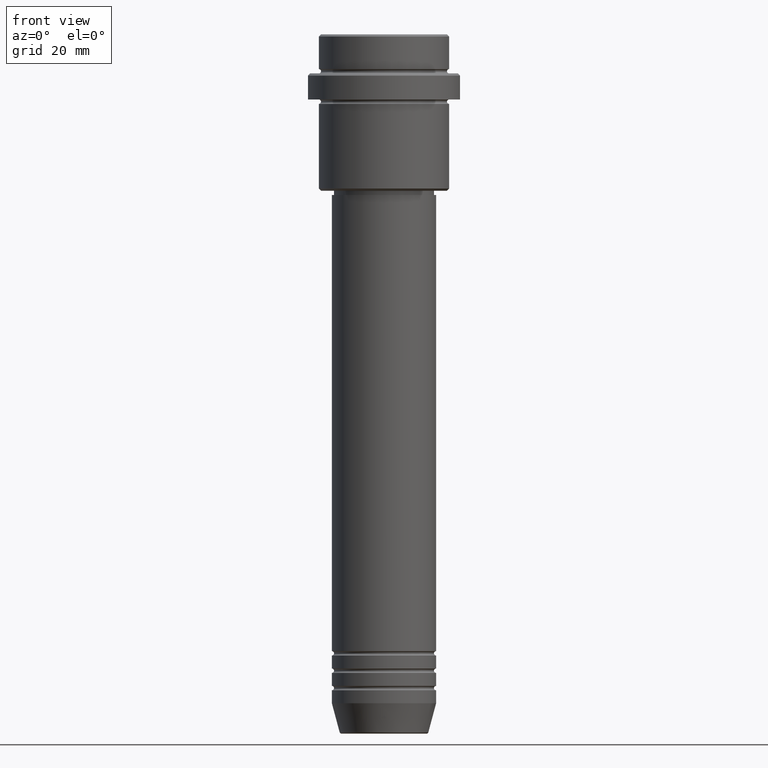
[diagram: clean part render]
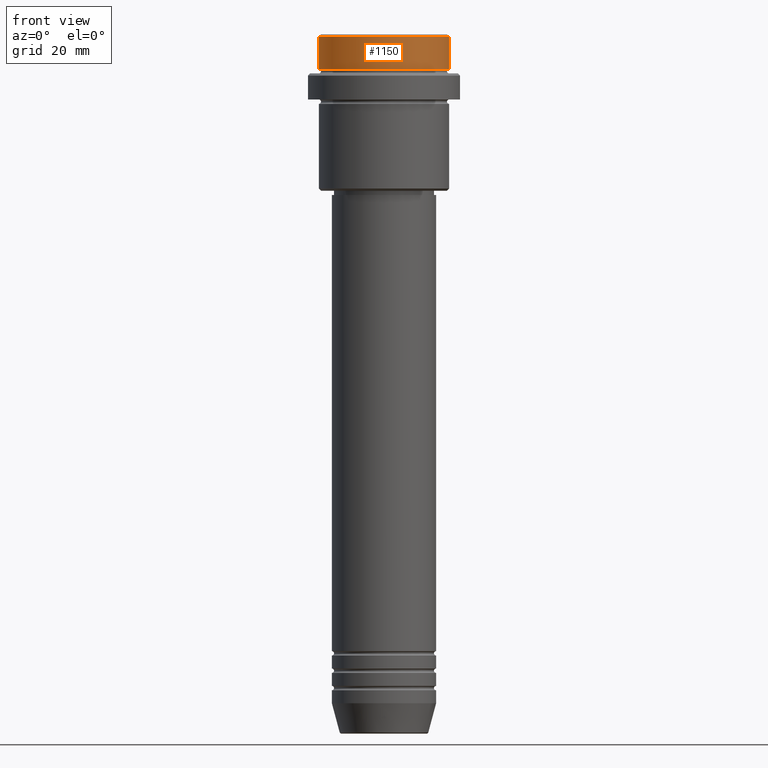
[diagram: same view with one face highlighted and labeled with its STEP entity id]
A machine part, front view. The second image highlights one B-rep face of the part: STEP entity #1150.
In plain terms, the highlighted cylindrical surface (partial cylindrical patch) has radius 15 mm, axis along (-0, -0, 1).
Its self-contained STEP definition (entity closure, byte-faithful):
#24 = DIRECTION ( 'NONE',  ( -0.000000000000000000, -0.000000000000000000, 1.000000000000000000 ) ) ;
#46 = DIRECTION ( 'NONE',  ( 1.000000000000000000, 0.000000000000000000, 0.000000000000000000 ) ) ;
#56 = ORIENTED_EDGE ( 'NONE', *, *, #463, .F. ) ;
#68 = CARTESIAN_POINT ( 'NONE',  ( 15.00000000000000000, 0.000000000000000000, -7.999999999999998224 ) ) ;
#70 = EDGE_CURVE ( 'NONE', #228, #901, #682, .T. ) ;
#92 = CYLINDRICAL_SURFACE ( 'NONE', #614, 15.00000000000000000 ) ;
#127 = EDGE_CURVE ( 'NONE', #1234, #228, #932, .T. ) ;
#158 = ORIENTED_EDGE ( 'NONE', *, *, #70, .T. ) ;
#159 = DIRECTION ( 'NONE',  ( 1.000000000000000000, 0.000000000000000000, 0.000000000000000000 ) ) ;
#193 = FACE_OUTER_BOUND ( 'NONE', #1170, .T. ) ;
#206 = CARTESIAN_POINT ( 'NONE',  ( -15.00000000000000000, 1.836970198721029589E-15, 0.000000000000000000 ) ) ;
#228 = VERTEX_POINT ( 'NONE', #68 ) ;
#232 = VERTEX_POINT ( 'NONE', #851 ) ;
#264 = CARTESIAN_POINT ( 'NONE',  ( 0.000000000000000000, 0.000000000000000000, -7.999999999999998224 ) ) ;
#463 = EDGE_CURVE ( 'NONE', #1234, #232, #1319, .T. ) ;
#469 = CIRCLE ( 'NONE', #770, 15.00000000000000000 ) ;
#486 = CARTESIAN_POINT ( 'NONE',  ( 15.00000000000000000, 0.000000000000000000, -0.5000000000000386358 ) ) ;
#527 = CARTESIAN_POINT ( 'NONE',  ( 0.000000000000000000, 0.000000000000000000, 0.000000000000000000 ) ) ;
#614 = AXIS2_PLACEMENT_3D ( 'NONE', #527, #966, #1394 ) ;
#623 = ORIENTED_EDGE ( 'NONE', *, *, #127, .T. ) ;
#682 = LINE ( 'NONE', #1118, #886 ) ;
#701 = DIRECTION ( 'NONE',  ( -0.000000000000000000, -0.000000000000000000, 1.000000000000000000 ) ) ;
#741 = AXIS2_PLACEMENT_3D ( 'NONE', #264, #701, #159 ) ;
#770 = AXIS2_PLACEMENT_3D ( 'NONE', #838, #1133, #46 ) ;
#838 = CARTESIAN_POINT ( 'NONE',  ( 0.000000000000000000, 0.000000000000000000, -0.5000000000000386358 ) ) ;
#851 = CARTESIAN_POINT ( 'NONE',  ( -15.00000000000000000, 1.836970198721029589E-15, -0.5000000000000386358 ) ) ;
#873 = DIRECTION ( 'NONE',  ( -0.000000000000000000, -0.000000000000000000, 1.000000000000000000 ) ) ;
#886 = VECTOR ( 'NONE', #24, 1000.000000000000000 ) ;
#896 = EDGE_CURVE ( 'NONE', #901, #232, #469, .T. ) ;
#901 = VERTEX_POINT ( 'NONE', #486 ) ;
#932 = CIRCLE ( 'NONE', #741, 15.00000000000000000 ) ;
#966 = DIRECTION ( 'NONE',  ( -0.000000000000000000, -0.000000000000000000, 1.000000000000000000 ) ) ;
#1000 = VECTOR ( 'NONE', #873, 1000.000000000000000 ) ;
#1118 = CARTESIAN_POINT ( 'NONE',  ( 15.00000000000000000, 0.000000000000000000, 0.000000000000000000 ) ) ;
#1133 = DIRECTION ( 'NONE',  ( 0.000000000000000000, 0.000000000000000000, -1.000000000000000000 ) ) ;
#1150 = ADVANCED_FACE ( 'NONE', ( #193 ), #92, .T. ) ;
#1170 = EDGE_LOOP ( 'NONE', ( #56, #623, #158, #1272 ) ) ;
#1234 = VERTEX_POINT ( 'NONE', #1416 ) ;
#1272 = ORIENTED_EDGE ( 'NONE', *, *, #896, .T. ) ;
#1319 = LINE ( 'NONE', #206, #1000 ) ;
#1394 = DIRECTION ( 'NONE',  ( 1.000000000000000000, 0.000000000000000000, 0.000000000000000000 ) ) ;
#1416 = CARTESIAN_POINT ( 'NONE',  ( -15.00000000000000000, 1.836970198721029589E-15, -7.999999999999998224 ) ) ;